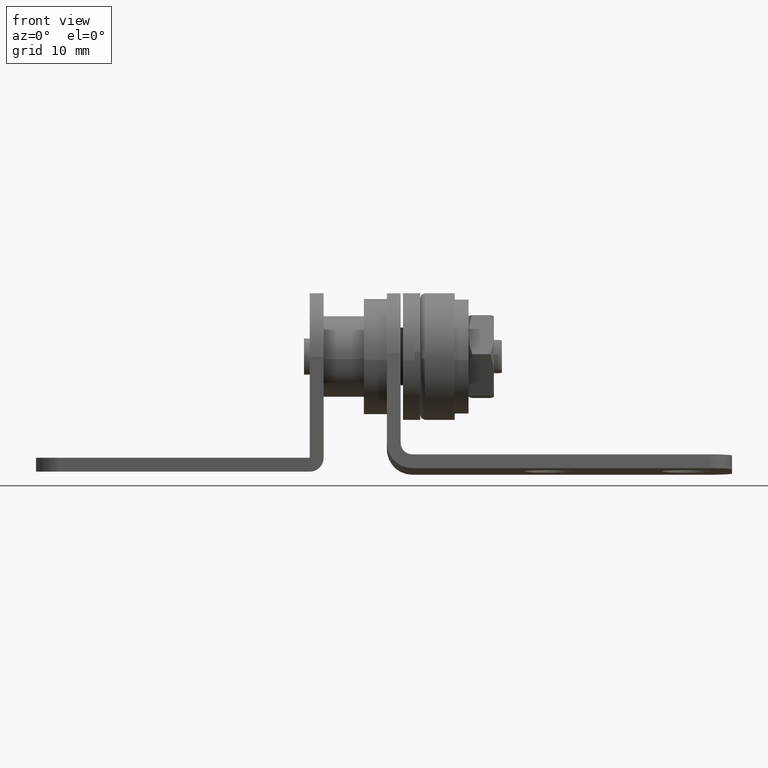
[diagram: clean part render]
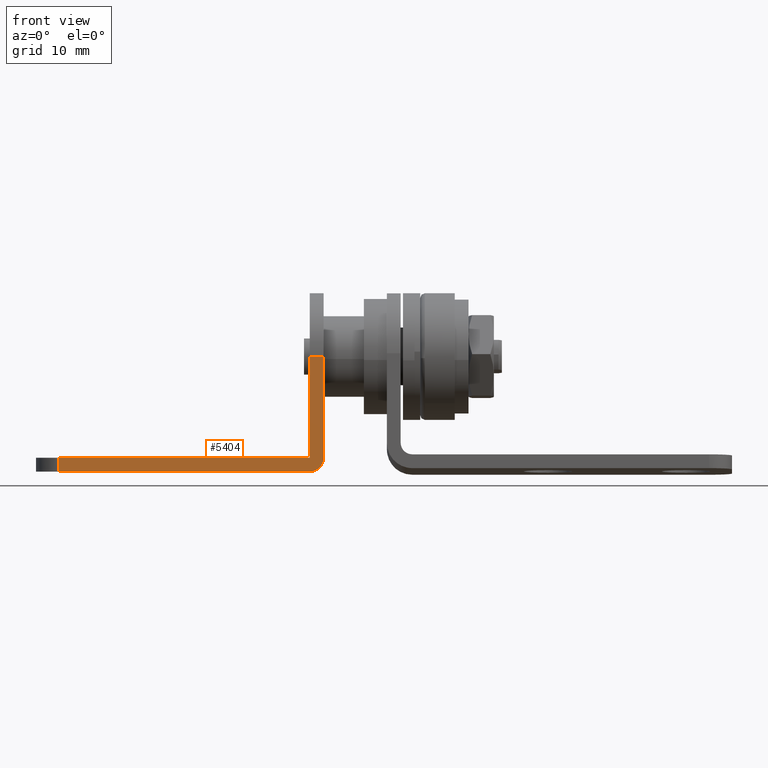
[diagram: same view with one face highlighted and labeled with its STEP entity id]
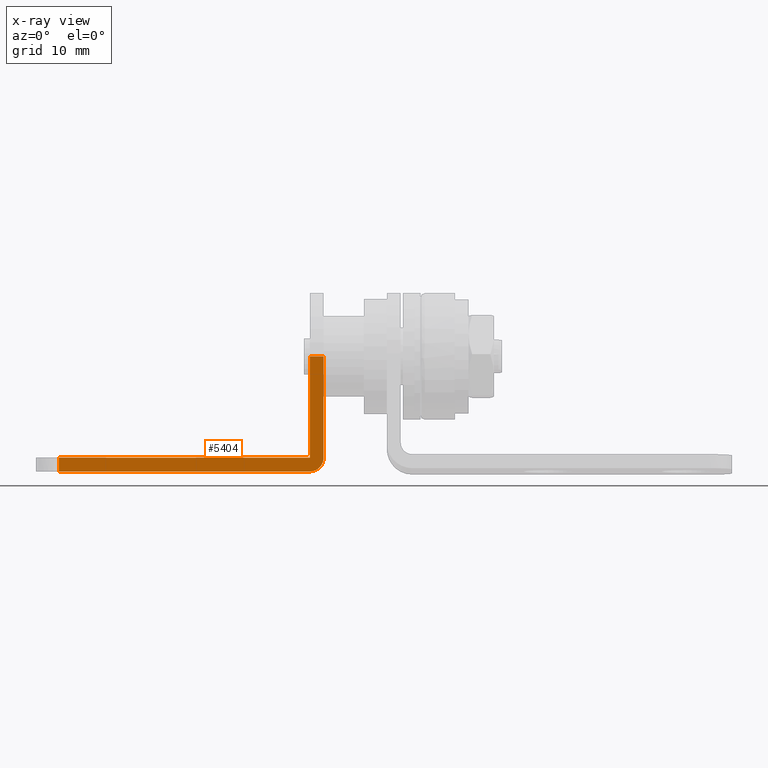
[diagram: x-ray of the same camera — body ghosted, the highlighted face saturated]
A machine part, front view. The second image highlights one B-rep face of the part: STEP entity #5404.
The next image is the same camera in x-ray: the body ghosted, the highlighted face saturated — about 0% of this face is hidden behind the body in this view.
In plain terms, the highlighted face is a freeform B-spline surface patch.
Its self-contained STEP definition (entity closure, byte-faithful):
#4845=CARTESIAN_POINT('',(-6.700000000000000,-5.499999999998550,-1.252995E-028));
#4846=VERTEX_POINT('',#4845);
#4872=CARTESIAN_POINT('',(-5.500000000000000,-5.499999999998550,-1.252995E-028));
#4873=VERTEX_POINT('',#4872);
#4874=CARTESIAN_POINT('',(-5.500000000000000,-5.499999999998550,-1.252995E-028));
#4875=CARTESIAN_POINT('',(-6.700000000000000,-5.499999999998550,-1.252995E-028));
#4876=QUASI_UNIFORM_CURVE('',1,(#4874,#4875),.UNSPECIFIED.,.F.,.U.);
#4877=EDGE_CURVE('',#4873,#4846,#4876,.T.);
#4942=CARTESIAN_POINT('',(-28.500000000000000,-5.500000000000000,-8.800000000000001));
#4943=VERTEX_POINT('',#4942);
#4957=CARTESIAN_POINT('',(-6.700000000000000,-5.500000000000000,-8.800000000000001));
#4958=VERTEX_POINT('',#4957);
#4959=CARTESIAN_POINT('',(-6.700000000000000,-5.500000000000000,-8.800000000000001));
#4960=CARTESIAN_POINT('',(-28.500000000000000,-5.500000000000000,-8.800000000000001));
#4961=QUASI_UNIFORM_CURVE('',1,(#4959,#4960),.UNSPECIFIED.,.F.,.U.);
#4962=EDGE_CURVE('',#4958,#4943,#4961,.T.);
#4998=CARTESIAN_POINT('',(-28.500000000000000,-5.500000000000000,-10.0));
#4999=VERTEX_POINT('',#4998);
#5015=CARTESIAN_POINT('',(-28.500000000000000,-5.500000000000000,-8.800000000000001));
#5016=CARTESIAN_POINT('',(-28.500000000000000,-5.500000000000000,-10.0));
#5017=QUASI_UNIFORM_CURVE('',1,(#5015,#5016),.UNSPECIFIED.,.F.,.U.);
#5018=EDGE_CURVE('',#4943,#4999,#5017,.T.);
#5105=CARTESIAN_POINT('',(-5.500000000000000,-5.500000000000000,-8.800000000000001));
#5106=VERTEX_POINT('',#5105);
#5112=CARTESIAN_POINT('',(-6.700000000000000,-5.500000000000000,-10.0));
#5113=VERTEX_POINT('',#5112);
#5114=CARTESIAN_POINT('',(-6.700000000000000,-5.500000000000000,-10.0));
#5115=CARTESIAN_POINT('',(-5.500000000000002,-5.500000000000000,-10.0));
#5116=CARTESIAN_POINT('',(-5.500000000000001,-5.500000000000000,-8.800000000000001));
#5124=(BOUNDED_CURVE()B_SPLINE_CURVE(2,(#5114,#5115,#5116),.UNSPECIFIED.,.F.,.U.)CURVE()GEOMETRIC_REPRESENTATION_ITEM()QUASI_UNIFORM_CURVE()RATIONAL_B_SPLINE_CURVE((1.0,0.707106781186547,1.0))REPRESENTATION_ITEM(''));
#5125=EDGE_CURVE('',#5113,#5106,#5124,.T.);
#5304=CARTESIAN_POINT('',(-6.700000000000000,-5.500000000000000,-8.800000000000001));
#5305=CARTESIAN_POINT('',(-6.700000000000000,-5.499999999998550,-1.252995E-028));
#5306=QUASI_UNIFORM_CURVE('',1,(#5304,#5305),.UNSPECIFIED.,.F.,.U.);
#5307=EDGE_CURVE('',#4958,#4846,#5306,.T.);
#5346=CARTESIAN_POINT('',(-5.500000000000000,-5.500000000000000,-8.800000000000001));
#5347=CARTESIAN_POINT('',(-5.500000000000000,-5.499999999998550,-1.252995E-028));
#5348=QUASI_UNIFORM_CURVE('',1,(#5346,#5347),.UNSPECIFIED.,.F.,.U.);
#5349=EDGE_CURVE('',#5106,#4873,#5348,.T.);
#5386=CARTESIAN_POINT('',(-29.648849955421539,-5.500000000000000,0.499499980618060));
#5387=CARTESIAN_POINT('',(-29.648849955421539,-5.500000000000000,-10.499500248838959));
#5388=CARTESIAN_POINT('',(-4.351149427670392,-5.500000000000000,0.499499980618060));
#5389=CARTESIAN_POINT('',(-4.351149427670392,-5.500000000000000,-10.499500248838959));
#5390=B_SPLINE_SURFACE_WITH_KNOTS('',1,1,((#5386,#5388),(#5387,#5389)),.UNSPECIFIED.,.F.,.F.,.U.,(2,2),(2,2),(0.0,10.999000229457019),(0.0,25.297700527751150),.UNSPECIFIED.);
#5391=ORIENTED_EDGE('',*,*,#4962,.T.);
#5392=ORIENTED_EDGE('',*,*,#5018,.T.);
#5393=CARTESIAN_POINT('',(-6.700000000000000,-5.500000000000000,-10.0));
#5394=CARTESIAN_POINT('',(-28.500000000000000,-5.500000000000000,-10.0));
#5395=QUASI_UNIFORM_CURVE('',1,(#5393,#5394),.UNSPECIFIED.,.F.,.U.);
#5396=EDGE_CURVE('',#5113,#4999,#5395,.T.);
#5397=ORIENTED_EDGE('',*,*,#5396,.F.);
#5398=ORIENTED_EDGE('',*,*,#5125,.T.);
#5399=ORIENTED_EDGE('',*,*,#5349,.T.);
#5400=ORIENTED_EDGE('',*,*,#4877,.T.);
#5401=ORIENTED_EDGE('',*,*,#5307,.F.);
#5402=EDGE_LOOP('',(#5391,#5392,#5397,#5398,#5399,#5400,#5401));
#5403=FACE_OUTER_BOUND('',#5402,.T.);
#5404=ADVANCED_FACE('',(#5403),#5390,.T.);